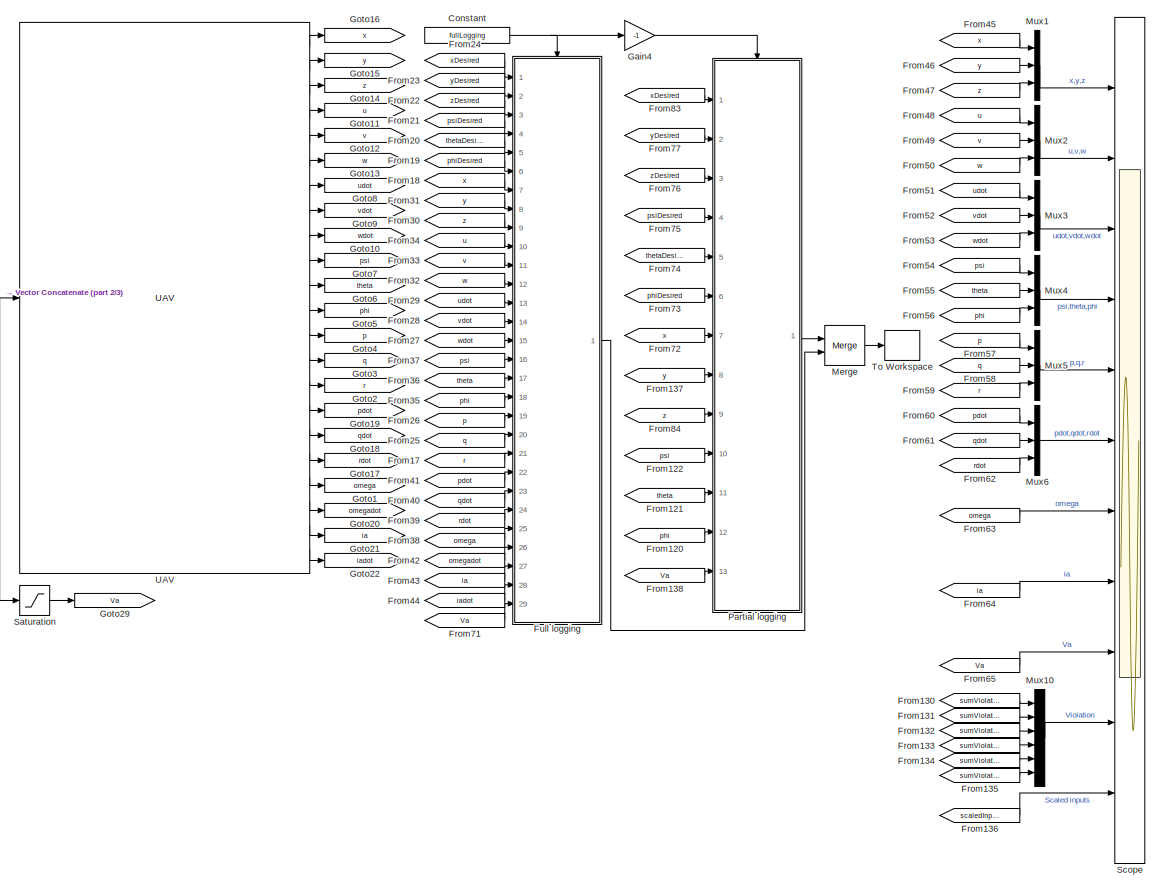
[diagram: root canvas - part 1/3, right side, full height]
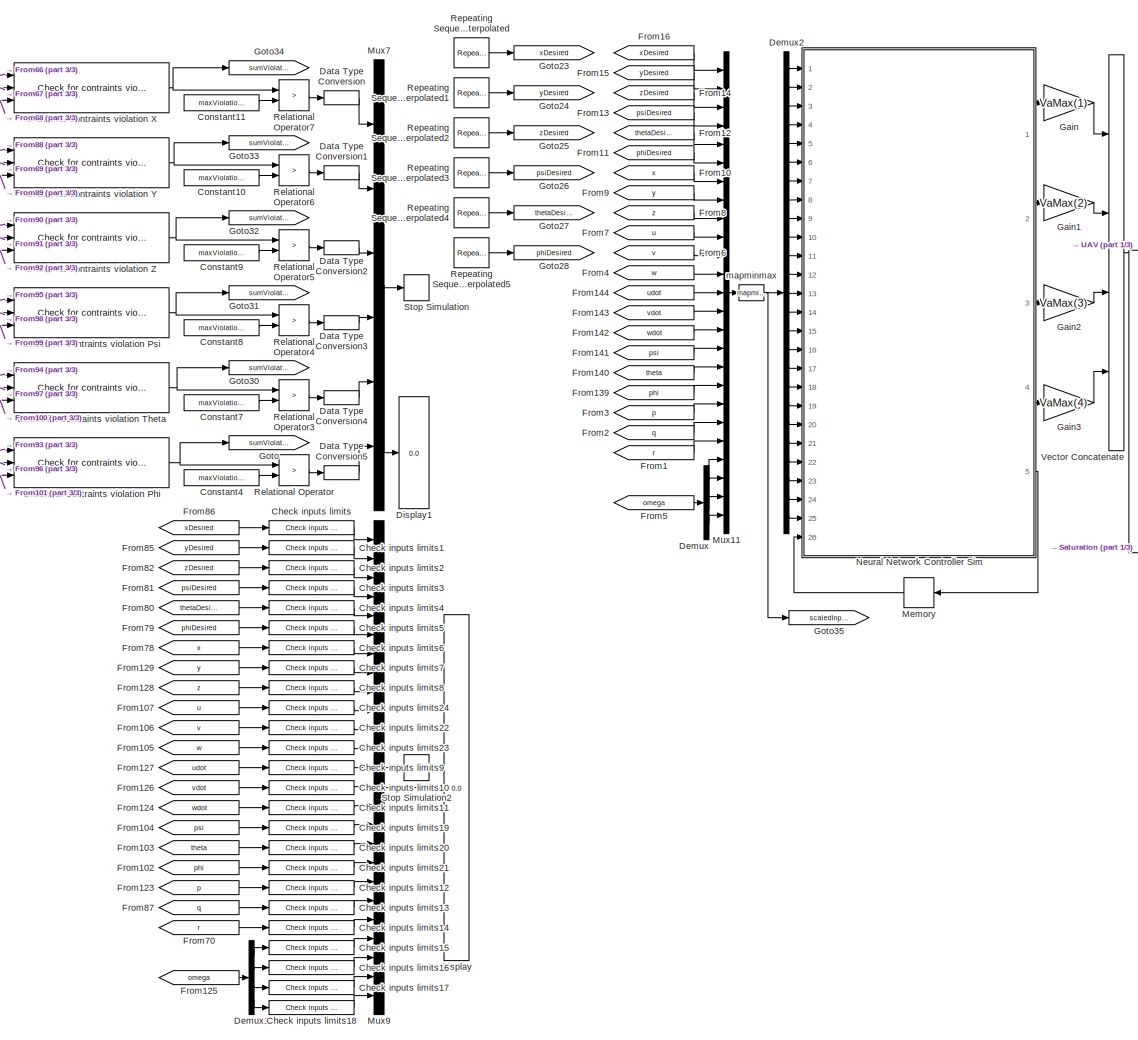
[diagram: root canvas - part 2/3, left side, full height]
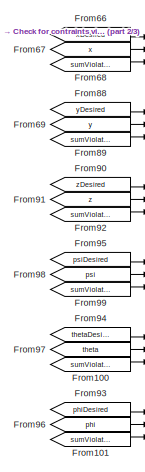
[diagram: root canvas - part 3/3, top left region]
MODEL slx_e8e5127eaf1f
KIND model
CONFIG AbsTol = auto
CONFIG FixedStep = auto
CONFIG MaxStep = auto
CONFIG MinStep = auto
CONFIG RelTol = 1e-3
CONFIG SampleTimeConstraint = Unconstrained
CONFIG Solver = VariableStepAuto
CONFIG SolverMode = Auto
CONFIG SolverName = VariableStepAuto
CONFIG StartTime = 0.0
CONFIG StopTime = 10.0
BLOCK [Reference] Check for contraints violation Phi  REF=uav_library/Check for contraints violation  (lib defined in slx_c8c01abc9ccf)
  Ports = [3, 1]
  SourceBlock = uav_library/Check for contraints violation
BLOCK [Reference] Check for contraints violation Psi  REF=uav_library/Check for contraints violation  (lib defined in slx_c8c01abc9ccf)
  Ports = [3, 1]
  SourceBlock = uav_library/Check for contraints violation
BLOCK [Reference] Check for contraints violation Theta  REF=uav_library/Check for contraints violation  (lib defined in slx_c8c01abc9ccf)
  Ports = [3, 1]
  SourceBlock = uav_library/Check for contraints violation
BLOCK [Reference] Check for contraints violation X  REF=uav_library/Check for contraints violation  (lib defined in slx_c8c01abc9ccf)
  Ports = [3, 1]
  SourceBlock = uav_library/Check for contraints violation
BLOCK [Reference] Check for contraints violation Y  REF=uav_library/Check for contraints violation  (lib defined in slx_c8c01abc9ccf)
  Ports = [3, 1]
  SourceBlock = uav_library/Check for contraints violation
BLOCK [Reference] Check for contraints violation Z  REF=uav_library/Check for contraints violation  (lib defined in slx_c8c01abc9ccf)
  Ports = [3, 1]
  SourceBlock = uav_library/Check for contraints violation
BLOCK [Reference] Check inputs limits  REF=uav_library/Check inputs limits  (lib defined in slx_c8c01abc9ccf)
  Ports = [1, 1]
  SourceBlock = uav_library/Check inputs limits
BLOCK [Reference] Check inputs limits1  REF=uav_library/Check inputs limits  (lib defined in slx_c8c01abc9ccf)
  Ports = [1, 1]
  SourceBlock = uav_library/Check inputs limits
BLOCK [Reference] Check inputs limits10  REF=uav_library/Check inputs limits  (lib defined in slx_c8c01abc9ccf)
  Ports = [1, 1]
  SourceBlock = uav_library/Check inputs limits
BLOCK [Reference] Check inputs limits11  REF=uav_library/Check inputs limits  (lib defined in slx_c8c01abc9ccf)
  Ports = [1, 1]
  SourceBlock = uav_library/Check inputs limits
BLOCK [Reference] Check inputs limits12  REF=uav_library/Check inputs limits  (lib defined in slx_c8c01abc9ccf)
  Ports = [1, 1]
  SourceBlock = uav_library/Check inputs limits
BLOCK [Reference] Check inputs limits13  REF=uav_library/Check inputs limits  (lib defined in slx_c8c01abc9ccf)
  Ports = [1, 1]
  SourceBlock = uav_library/Check inputs limits
BLOCK [Reference] Check inputs limits14  REF=uav_library/Check inputs limits  (lib defined in slx_c8c01abc9ccf)
  Ports = [1, 1]
  SourceBlock = uav_library/Check inputs limits
BLOCK [Reference] Check inputs limits15  REF=uav_library/Check inputs limits  (lib defined in slx_c8c01abc9ccf)
  Ports = [1, 1]
  SourceBlock = uav_library/Check inputs limits
BLOCK [Reference] Check inputs limits16  REF=uav_library/Check inputs limits  (lib defined in slx_c8c01abc9ccf)
  Ports = [1, 1]
  SourceBlock = uav_library/Check inputs limits
BLOCK [Reference] Check inputs limits17  REF=uav_library/Check inputs limits  (lib defined in slx_c8c01abc9ccf)
  Ports = [1, 1]
  SourceBlock = uav_library/Check inputs limits
BLOCK [Reference] Check inputs limits18  REF=uav_library/Check inputs limits  (lib defined in slx_c8c01abc9ccf)
  Ports = [1, 1]
  SourceBlock = uav_library/Check inputs limits
BLOCK [Reference] Check inputs limits19  REF=uav_library/Check inputs limits  (lib defined in slx_c8c01abc9ccf)
  Ports = [1, 1]
  SourceBlock = uav_library/Check inputs limits
BLOCK [Reference] Check inputs limits2  REF=uav_library/Check inputs limits  (lib defined in slx_c8c01abc9ccf)
  Ports = [1, 1]
  SourceBlock = uav_library/Check inputs limits
BLOCK [Reference] Check inputs limits20  REF=uav_library/Check inputs limits  (lib defined in slx_c8c01abc9ccf)
  Ports = [1, 1]
  SourceBlock = uav_library/Check inputs limits
BLOCK [Reference] Check inputs limits21  REF=uav_library/Check inputs limits  (lib defined in slx_c8c01abc9ccf)
  Ports = [1, 1]
  SourceBlock = uav_library/Check inputs limits
BLOCK [Reference] Check inputs limits22  REF=uav_library/Check inputs limits  (lib defined in slx_c8c01abc9ccf)
  Ports = [1, 1]
  SourceBlock = uav_library/Check inputs limits
BLOCK [Reference] Check inputs limits23  REF=uav_library/Check inputs limits  (lib defined in slx_c8c01abc9ccf)
  Ports = [1, 1]
  SourceBlock = uav_library/Check inputs limits
BLOCK [Reference] Check inputs limits24  REF=uav_library/Check inputs limits  (lib defined in slx_c8c01abc9ccf)
  Ports = [1, 1]
  SourceBlock = uav_library/Check inputs limits
BLOCK [Reference] Check inputs limits3  REF=uav_library/Check inputs limits  (lib defined in slx_c8c01abc9ccf)
  Ports = [1, 1]
  SourceBlock = uav_library/Check inputs limits
BLOCK [Reference] Check inputs limits4  REF=uav_library/Check inputs limits  (lib defined in slx_c8c01abc9ccf)
  Ports = [1, 1]
  SourceBlock = uav_library/Check inputs limits
BLOCK [Reference] Check inputs limits5  REF=uav_library/Check inputs limits  (lib defined in slx_c8c01abc9ccf)
  Ports = [1, 1]
  SourceBlock = uav_library/Check inputs limits
BLOCK [Reference] Check inputs limits6  REF=uav_library/Check inputs limits  (lib defined in slx_c8c01abc9ccf)
  Ports = [1, 1]
  SourceBlock = uav_library/Check inputs limits
BLOCK [Reference] Check inputs limits7  REF=uav_library/Check inputs limits  (lib defined in slx_c8c01abc9ccf)
  Ports = [1, 1]
  SourceBlock = uav_library/Check inputs limits
BLOCK [Reference] Check inputs limits8  REF=uav_library/Check inputs limits  (lib defined in slx_c8c01abc9ccf)
  Ports = [1, 1]
  SourceBlock = uav_library/Check inputs limits
BLOCK [Reference] Check inputs limits9  REF=uav_library/Check inputs limits  (lib defined in slx_c8c01abc9ccf)
  Ports = [1, 1]
  SourceBlock = uav_library/Check inputs limits
BLOCK [Constant] Constant
  Value = fullLogging
BLOCK [Constant] Constant10
  Value = maxViolationY
BLOCK [Constant] Constant11
  Value = maxViolationX
BLOCK [Constant] Constant4
  Value = maxViolationPhi
BLOCK [Constant] Constant7
  Value = maxViolationTheta
BLOCK [Constant] Constant8
  Value = maxViolationPsi
BLOCK [Constant] Constant9
  Value = maxViolationZ
BLOCK [DataTypeConversion] Data Type Conversion
  OutDataTypeStr = double
  RndMeth = Floor
  SaturateOnIntegerOverflow = off
BLOCK [DataTypeConversion] Data Type Conversion1
  OutDataTypeStr = double
  RndMeth = Floor
  SaturateOnIntegerOverflow = off
BLOCK [DataTypeConversion] Data Type Conversion2
  OutDataTypeStr = double
  RndMeth = Floor
  SaturateOnIntegerOverflow = off
BLOCK [DataTypeConversion] Data Type Conversion3
  OutDataTypeStr = double
  RndMeth = Floor
  SaturateOnIntegerOverflow = off
BLOCK [DataTypeConversion] Data Type Conversion4
  OutDataTypeStr = double
  RndMeth = Floor
  SaturateOnIntegerOverflow = off
BLOCK [DataTypeConversion] Data Type Conversion5
  OutDataTypeStr = double
  RndMeth = Floor
  SaturateOnIntegerOverflow = off
BLOCK [Demux] Demux
  DisplayOption = bar
  Ports = [1, 4]
BLOCK [Demux] Demux1
  DisplayOption = bar
  Ports = [1, 4]
BLOCK [Demux] Demux2
  DisplayOption = bar
  Outputs = 25
  Ports = [1, 25]
BLOCK [Display] Display
  Commented = on
  Decimation = 1
  Ports = [1]
BLOCK [Display] Display1
  Commented = on
  Decimation = 1
  Ports = [1]
BLOCK [From] From1
  GotoTag = r
BLOCK [From] From10
  GotoTag = x
BLOCK [From] From100
  GotoTag = sumViolationTheta
BLOCK [From] From101
  GotoTag = sumViolationPhi
BLOCK [From] From102
  GotoTag = phi
BLOCK [From] From103
  GotoTag = theta
BLOCK [From] From104
  GotoTag = psi
BLOCK [From] From105
  GotoTag = w
BLOCK [From] From106
  GotoTag = v
BLOCK [From] From107
  GotoTag = u
BLOCK [From] From11
  GotoTag = phiDesired
BLOCK [From] From12
  GotoTag = thetaDesired
BLOCK [From] From120
  GotoTag = phi
BLOCK [From] From121
  GotoTag = theta
BLOCK [From] From122
  GotoTag = psi
BLOCK [From] From123
  GotoTag = p
BLOCK [From] From124
  GotoTag = wdot
BLOCK [From] From125
  GotoTag = omega
BLOCK [From] From126
  GotoTag = vdot
BLOCK [From] From127
  GotoTag = udot
BLOCK [From] From128
  GotoTag = z
BLOCK [From] From129
  GotoTag = y
BLOCK [From] From13
  GotoTag = psiDesired
BLOCK [From] From130
  Commented = on
  GotoTag = sumViolationX
BLOCK [From] From131
  Commented = on
  GotoTag = sumViolationY
BLOCK [From] From132
  Commented = on
  GotoTag = sumViolationZ
BLOCK [From] From133
  Commented = on
  GotoTag = sumViolationPsi
BLOCK [From] From134
  Commented = on
  GotoTag = sumViolationTheta
BLOCK [From] From135
  Commented = on
  GotoTag = sumViolationPhi
BLOCK [From] From136
  Commented = on
  GotoTag = scaledInputs
BLOCK [From] From137
  GotoTag = y
BLOCK [From] From138
  GotoTag = Va
BLOCK [From] From139
  GotoTag = phi
BLOCK [From] From14
  GotoTag = zDesired
BLOCK [From] From140
  GotoTag = theta
BLOCK [From] From141
  GotoTag = psi
BLOCK [From] From142
  GotoTag = wdot
BLOCK [From] From143
  GotoTag = vdot
BLOCK [From] From144
  GotoTag = udot
BLOCK [From] From15
  GotoTag = yDesired
BLOCK [From] From16
  GotoTag = xDesired
BLOCK [From] From17
  GotoTag = r
BLOCK [From] From18
  GotoTag = x
BLOCK [From] From19
  GotoTag = phiDesired
BLOCK [From] From2
  GotoTag = q
BLOCK [From] From20
  GotoTag = thetaDesired
BLOCK [From] From21
  GotoTag = psiDesired
BLOCK [From] From22
  GotoTag = zDesired
BLOCK [From] From23
  GotoTag = yDesired
BLOCK [From] From24
  GotoTag = xDesired
BLOCK [From] From25
  GotoTag = q
BLOCK [From] From26
  GotoTag = p
BLOCK [From] From27
  GotoTag = wdot
BLOCK [From] From28
  GotoTag = vdot
BLOCK [From] From29
  GotoTag = udot
BLOCK [From] From3
  GotoTag = p
BLOCK [From] From30
  GotoTag = z
BLOCK [From] From31
  GotoTag = y
BLOCK [From] From32
  GotoTag = w
BLOCK [From] From33
  GotoTag = v
BLOCK [From] From34
  GotoTag = u
BLOCK [From] From35
  GotoTag = phi
BLOCK [From] From36
  GotoTag = theta
BLOCK [From] From37
  GotoTag = psi
BLOCK [From] From38
  GotoTag = omega
BLOCK [From] From39
  GotoTag = rdot
BLOCK [From] From4
  GotoTag = w
BLOCK [From] From40
  GotoTag = qdot
BLOCK [From] From41
  GotoTag = pdot
BLOCK [From] From42
  GotoTag = omegadot
BLOCK [From] From43
  GotoTag = ia
BLOCK [From] From44
  GotoTag = iadot
BLOCK [From] From45
  Commented = on
  GotoTag = x
BLOCK [From] From46
  Commented = on
  GotoTag = y
BLOCK [From] From47
  Commented = on
  GotoTag = z
BLOCK [From] From48
  Commented = on
  GotoTag = u
BLOCK [From] From49
  Commented = on
  GotoTag = v
BLOCK [From] From5
  GotoTag = omega
BLOCK [From] From50
  Commented = on
  GotoTag = w
BLOCK [From] From51
  Commented = on
  GotoTag = udot
BLOCK [From] From52
  Commented = on
  GotoTag = vdot
BLOCK [From] From53
  Commented = on
  GotoTag = wdot
BLOCK [From] From54
  Commented = on
  GotoTag = psi
BLOCK [From] From55
  Commented = on
  GotoTag = theta
BLOCK [From] From56
  Commented = on
  GotoTag = phi
BLOCK [From] From57
  Commented = on
  GotoTag = p
BLOCK [From] From58
  Commented = on
  GotoTag = q
BLOCK [From] From59
  Commented = on
  GotoTag = r
BLOCK [From] From6
  GotoTag = v
BLOCK [From] From60
  Commented = on
  GotoTag = pdot
BLOCK [From] From61
  Commented = on
  GotoTag = qdot
BLOCK [From] From62
  Commented = on
  GotoTag = rdot
BLOCK [From] From63
  Commented = on
  GotoTag = omega
BLOCK [From] From64
  Commented = on
  GotoTag = ia
BLOCK [From] From65
  Commented = on
  GotoTag = Va
BLOCK [From] From66
  GotoTag = xDesired
BLOCK [From] From67
  GotoTag = x
BLOCK [From] From68
  GotoTag = sumViolationX
BLOCK [From] From69
  GotoTag = y
BLOCK [From] From7
  GotoTag = u
BLOCK [From] From70
  GotoTag = r
BLOCK [From] From71
  GotoTag = Va
BLOCK [From] From72
  GotoTag = x
BLOCK [From] From73
  GotoTag = phiDesired
BLOCK [From] From74
  GotoTag = thetaDesired
BLOCK [From] From75
  GotoTag = psiDesired
BLOCK [From] From76
  GotoTag = zDesired
BLOCK [From] From77
  GotoTag = yDesired
BLOCK [From] From78
  GotoTag = x
BLOCK [From] From79
  GotoTag = phiDesired
BLOCK [From] From8
  GotoTag = z
BLOCK [From] From80
  GotoTag = thetaDesired
BLOCK [From] From81
  GotoTag = psiDesired
BLOCK [From] From82
  GotoTag = zDesired
BLOCK [From] From83
  GotoTag = xDesired
BLOCK [From] From84
  GotoTag = z
BLOCK [From] From85
  GotoTag = yDesired
BLOCK [From] From86
  GotoTag = xDesired
BLOCK [From] From87
  GotoTag = q
BLOCK [From] From88
  GotoTag = yDesired
BLOCK [From] From89
  GotoTag = sumViolationY
BLOCK [From] From9
  GotoTag = y
BLOCK [From] From90
  GotoTag = zDesired
BLOCK [From] From91
  GotoTag = z
BLOCK [From] From92
  GotoTag = sumViolationZ
BLOCK [From] From93
  GotoTag = phiDesired
BLOCK [From] From94
  GotoTag = thetaDesired
BLOCK [From] From95
  GotoTag = psiDesired
BLOCK [From] From96
  GotoTag = phi
BLOCK [From] From97
  GotoTag = theta
BLOCK [From] From98
  GotoTag = psi
BLOCK [From] From99
  GotoTag = sumViolationPsi
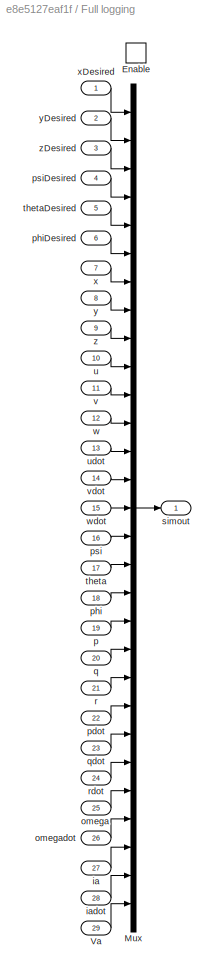
BLOCK [SubSystem] Full logging
  Ports = [29, 1, 1]
  RequestExecContextInheritance = off
  Variant = off
BLOCK [EnablePort] Full logging/Enable
  Ports = []
  StatesWhenEnabling = reset
BLOCK [Mux] Full logging/Mux
  DisplayOption = bar
  Inputs = 29
  Ports = [29, 1]
BLOCK [Inport] Full logging/Va
  IconDisplay = Port number
  Port = 29
BLOCK [Inport] Full logging/ia
  IconDisplay = Port number
  Port = 27
BLOCK [Inport] Full logging/iadot
  IconDisplay = Port number
  Port = 28
BLOCK [Inport] Full logging/omega
  IconDisplay = Port number
  Port = 25
BLOCK [Inport] Full logging/omegadot
  IconDisplay = Port number
  Port = 26
BLOCK [Inport] Full logging/p
  IconDisplay = Port number
  Port = 19
BLOCK [Inport] Full logging/pdot
  IconDisplay = Port number
  Port = 22
BLOCK [Inport] Full logging/phi
  IconDisplay = Port number
  Port = 18
BLOCK [Inport] Full logging/phiDesired
  IconDisplay = Port number
  Port = 6
BLOCK [Inport] Full logging/psi
  IconDisplay = Port number
  Port = 16
BLOCK [Inport] Full logging/psiDesired
  IconDisplay = Port number
  Port = 4
BLOCK [Inport] Full logging/q
  IconDisplay = Port number
  Port = 20
BLOCK [Inport] Full logging/qdot
  IconDisplay = Port number
  Port = 23
BLOCK [Inport] Full logging/r
  IconDisplay = Port number
  Port = 21
BLOCK [Inport] Full logging/rdot
  IconDisplay = Port number
  Port = 24
BLOCK [Outport] Full logging/simout
  IconDisplay = Port number
BLOCK [Inport] Full logging/theta
  IconDisplay = Port number
  Port = 17
BLOCK [Inport] Full logging/thetaDesired
  IconDisplay = Port number
  Port = 5
BLOCK [Inport] Full logging/u
  IconDisplay = Port number
  Port = 10
BLOCK [Inport] Full logging/udot
  IconDisplay = Port number
  Port = 13
BLOCK [Inport] Full logging/v
  IconDisplay = Port number
  Port = 11
BLOCK [Inport] Full logging/vdot
  IconDisplay = Port number
  Port = 14
BLOCK [Inport] Full logging/w
  IconDisplay = Port number
  Port = 12
BLOCK [Inport] Full logging/wdot
  IconDisplay = Port number
  Port = 15
BLOCK [Inport] Full logging/x
  IconDisplay = Port number
  Port = 7
BLOCK [Inport] Full logging/xDesired
  IconDisplay = Port number
BLOCK [Inport] Full logging/y
  IconDisplay = Port number
  Port = 8
BLOCK [Inport] Full logging/yDesired
  IconDisplay = Port number
  Port = 2
BLOCK [Inport] Full logging/z
  IconDisplay = Port number
  Port = 9
BLOCK [Inport] Full logging/zDesired
  IconDisplay = Port number
  Port = 3
BLOCK [Gain] Gain
  Gain = VaMax(1)
  OutDataTypeStr = Inherit: Inherit via internal rule
  ParamDataTypeStr = Inherit: Inherit via internal rule
  SaturateOnIntegerOverflow = off
BLOCK [Gain] Gain1
  Gain = VaMax(2)
  OutDataTypeStr = Inherit: Inherit via internal rule
  ParamDataTypeStr = Inherit: Inherit via internal rule
  SaturateOnIntegerOverflow = off
BLOCK [Gain] Gain2
  Gain = VaMax(3)
  OutDataTypeStr = Inherit: Inherit via internal rule
  ParamDataTypeStr = Inherit: Inherit via internal rule
  SaturateOnIntegerOverflow = off
BLOCK [Gain] Gain3
  Gain = VaMax(4)
  OutDataTypeStr = Inherit: Inherit via internal rule
  ParamDataTypeStr = Inherit: Inherit via internal rule
  SaturateOnIntegerOverflow = off
BLOCK [Gain] Gain4
  Gain = -1
  OutDataTypeStr = Inherit: Inherit via internal rule
  ParamDataTypeStr = Inherit: Inherit via internal rule
  SaturateOnIntegerOverflow = off
BLOCK [Goto] Goto
  GotoTag = sumViolationPhi
BLOCK [Goto] Goto1
  GotoTag = omega
BLOCK [Goto] Goto10
  GotoTag = wdot
BLOCK [Goto] Goto11
  GotoTag = u
BLOCK [Goto] Goto12
  GotoTag = v
BLOCK [Goto] Goto13
  GotoTag = w
BLOCK [Goto] Goto14
  GotoTag = z
BLOCK [Goto] Goto15
  GotoTag = y
BLOCK [Goto] Goto16
  GotoTag = x
BLOCK [Goto] Goto17
  GotoTag = rdot
BLOCK [Goto] Goto18
  GotoTag = qdot
BLOCK [Goto] Goto19
  GotoTag = pdot
BLOCK [Goto] Goto2
  GotoTag = r
BLOCK [Goto] Goto20
  GotoTag = omegadot
BLOCK [Goto] Goto21
  GotoTag = ia
BLOCK [Goto] Goto22
  GotoTag = iadot
BLOCK [Goto] Goto23
  GotoTag = xDesired
BLOCK [Goto] Goto24
  GotoTag = yDesired
BLOCK [Goto] Goto25
  GotoTag = zDesired
BLOCK [Goto] Goto26
  GotoTag = psiDesired
BLOCK [Goto] Goto27
  GotoTag = thetaDesired
BLOCK [Goto] Goto28
  GotoTag = phiDesired
BLOCK [Goto] Goto29
  GotoTag = Va
BLOCK [Goto] Goto3
  GotoTag = q
BLOCK [Goto] Goto30
  GotoTag = sumViolationTheta
BLOCK [Goto] Goto31
  GotoTag = sumViolationPsi
BLOCK [Goto] Goto32
  GotoTag = sumViolationZ
BLOCK [Goto] Goto33
  GotoTag = sumViolationY
BLOCK [Goto] Goto34
  GotoTag = sumViolationX
BLOCK [Goto] Goto35
  Commented = on
  GotoTag = scaledInputs
BLOCK [Goto] Goto4
  GotoTag = p
BLOCK [Goto] Goto5
  GotoTag = phi
BLOCK [Goto] Goto6
  GotoTag = theta
BLOCK [Goto] Goto7
  GotoTag = psi
BLOCK [Goto] Goto8
  GotoTag = udot
BLOCK [Goto] Goto9
  GotoTag = vdot
BLOCK [Memory] Memory
  X0 = initialState
BLOCK [Merge] Merge
  Ports = [2, 1]
BLOCK [Mux] Mux1
  Commented = on
  DisplayOption = bar
  Inputs = 3
  Ports = [3, 1]
BLOCK [Mux] Mux10
  Commented = on
  DisplayOption = bar
  Inputs = 6
  Ports = [6, 1]
BLOCK [Mux] Mux11
  DisplayOption = bar
  Inputs = 25
  Ports = [25, 1]
BLOCK [Mux] Mux2
  Commented = on
  DisplayOption = bar
  Inputs = 3
  Ports = [3, 1]
BLOCK [Mux] Mux3
  Commented = on
  DisplayOption = bar
  Inputs = 3
  Ports = [3, 1]
BLOCK [Mux] Mux4
  Commented = on
  DisplayOption = bar
  Inputs = 3
  Ports = [3, 1]
BLOCK [Mux] Mux5
  Commented = on
  DisplayOption = bar
  Inputs = 3
  Ports = [3, 1]
BLOCK [Mux] Mux6
  Commented = on
  DisplayOption = bar
  Inputs = 3
  Ports = [3, 1]
BLOCK [Mux] Mux7
  DisplayOption = bar
  Inputs = 6
  Ports = [6, 1]
BLOCK [Mux] Mux9
  DisplayOption = bar
  Inputs = 25
  Ports = [25, 1]
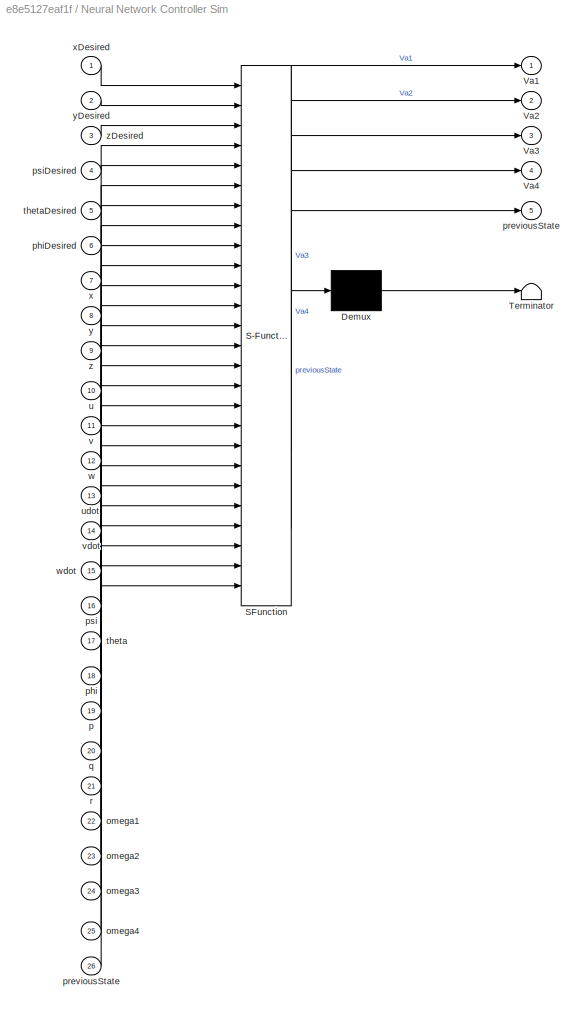
BLOCK [SubSystem] Neural Network Controller Sim
  ErrorFcn = Stateflow.Translate.translate
  PermitHierarchicalResolution = ExplicitOnly
  Ports = [26, 5]
  RTWSystemCode = Nonreusable function
  RequestExecContextInheritance = off
  SFBlockType = MATLAB Function
  TreatAsAtomicUnit = on
  Variant = off
BLOCK [Demux] Neural Network Controller Sim/ Demux 
  Outputs = 1
  Ports = [1, 1]
BLOCK [S-Function] Neural Network Controller Sim/ SFunction 
  EnableBusSupport = on
  FunctionName = sf_sfun
  PortCounts = [26 6]
  Ports = [26, 6]
  SFunctionDeploymentMode = off
  Tag = Stateflow S-Function uav_closed_loop_v5 2
BLOCK [Terminator] Neural Network Controller Sim/ Terminator 
BLOCK [Outport] Neural Network Controller Sim/Va1
  IconDisplay = Port number
BLOCK [Outport] Neural Network Controller Sim/Va2
  IconDisplay = Port number
  Port = 2
BLOCK [Outport] Neural Network Controller Sim/Va3
  IconDisplay = Port number
  Port = 3
BLOCK [Outport] Neural Network Controller Sim/Va4
  IconDisplay = Port number
  Port = 4
BLOCK [Inport] Neural Network Controller Sim/omega1
  IconDisplay = Port number
  Port = 22
BLOCK [Inport] Neural Network Controller Sim/omega2
  IconDisplay = Port number
  Port = 23
BLOCK [Inport] Neural Network Controller Sim/omega3
  IconDisplay = Port number
  Port = 24
BLOCK [Inport] Neural Network Controller Sim/omega4
  IconDisplay = Port number
  Port = 25
BLOCK [Inport] Neural Network Controller Sim/p
  IconDisplay = Port number
  Port = 19
BLOCK [Inport] Neural Network Controller Sim/phi
  IconDisplay = Port number
  Port = 18
BLOCK [Inport] Neural Network Controller Sim/phiDesired
  IconDisplay = Port number
  Port = 6
BLOCK [Outport] Neural Network Controller Sim/previousState
  IconDisplay = Port number
  Port = 5
BLOCK [Inport] Neural Network Controller Sim/previousState 
  IconDisplay = Port number
  Port = 26
BLOCK [Inport] Neural Network Controller Sim/psi
  IconDisplay = Port number
  Port = 16
BLOCK [Inport] Neural Network Controller Sim/psiDesired
  IconDisplay = Port number
  Port = 4
BLOCK [Inport] Neural Network Controller Sim/q
  IconDisplay = Port number
  Port = 20
BLOCK [Inport] Neural Network Controller Sim/r
  IconDisplay = Port number
  Port = 21
BLOCK [Inport] Neural Network Controller Sim/theta
  IconDisplay = Port number
  Port = 17
BLOCK [Inport] Neural Network Controller Sim/thetaDesired
  IconDisplay = Port number
  Port = 5
BLOCK [Inport] Neural Network Controller Sim/u
  IconDisplay = Port number
  Port = 10
BLOCK [Inport] Neural Network Controller Sim/udot
  IconDisplay = Port number
  Port = 13
BLOCK [Inport] Neural Network Controller Sim/v
  IconDisplay = Port number
  Port = 11
BLOCK [Inport] Neural Network Controller Sim/vdot
  IconDisplay = Port number
  Port = 14
BLOCK [Inport] Neural Network Controller Sim/w
  IconDisplay = Port number
  Port = 12
BLOCK [Inport] Neural Network Controller Sim/wdot
  IconDisplay = Port number
  Port = 15
BLOCK [Inport] Neural Network Controller Sim/x
  IconDisplay = Port number
  Port = 7
BLOCK [Inport] Neural Network Controller Sim/xDesired
  IconDisplay = Port number
BLOCK [Inport] Neural Network Controller Sim/y
  IconDisplay = Port number
  Port = 8
BLOCK [Inport] Neural Network Controller Sim/yDesired
  IconDisplay = Port number
  Port = 2
BLOCK [Inport] Neural Network Controller Sim/z
  IconDisplay = Port number
  Port = 9
BLOCK [Inport] Neural Network Controller Sim/zDesired
  IconDisplay = Port number
  Port = 3
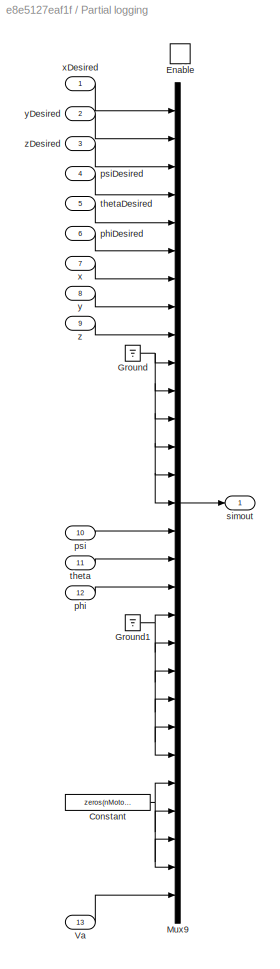
BLOCK [SubSystem] Partial logging
  Ports = [13, 1, 1]
  RequestExecContextInheritance = off
  Variant = off
BLOCK [Constant] Partial logging/Constant
  Value = zeros(nMotors,1)
BLOCK [EnablePort] Partial logging/Enable
  Ports = []
  StatesWhenEnabling = reset
BLOCK [Ground] Partial logging/Ground
BLOCK [Ground] Partial logging/Ground1
BLOCK [Mux] Partial logging/Mux9
  DisplayOption = bar
  Inputs = 29
  Ports = [29, 1]
BLOCK [Inport] Partial logging/Va
  IconDisplay = Port number
  Port = 13
BLOCK [Inport] Partial logging/phi
  IconDisplay = Port number
  Port = 12
BLOCK [Inport] Partial logging/phiDesired
  IconDisplay = Port number
  Port = 6
BLOCK [Inport] Partial logging/psi
  IconDisplay = Port number
  Port = 10
BLOCK [Inport] Partial logging/psiDesired
  IconDisplay = Port number
  Port = 4
BLOCK [Outport] Partial logging/simout
  IconDisplay = Port number
BLOCK [Inport] Partial logging/theta
  IconDisplay = Port number
  Port = 11
BLOCK [Inport] Partial logging/thetaDesired
  IconDisplay = Port number
  Port = 5
BLOCK [Inport] Partial logging/x
  IconDisplay = Port number
  Port = 7
BLOCK [Inport] Partial logging/xDesired
  IconDisplay = Port number
BLOCK [Inport] Partial logging/y
  IconDisplay = Port number
  Port = 8
BLOCK [Inport] Partial logging/yDesired
  IconDisplay = Port number
  Port = 2
BLOCK [Inport] Partial logging/z
  IconDisplay = Port number
  Port = 9
BLOCK [Inport] Partial logging/zDesired
  IconDisplay = Port number
  Port = 3
BLOCK [RelationalOperator] Relational Operator
  InputSameDT = off
  Operator = >
  OutDataTypeStr = boolean
  Ports = [2, 1]
  ZeroCross = off
BLOCK [RelationalOperator] Relational Operator3
  InputSameDT = off
  Operator = >
  OutDataTypeStr = boolean
  Ports = [2, 1]
  ZeroCross = off
BLOCK [RelationalOperator] Relational Operator4
  InputSameDT = off
  Operator = >
  OutDataTypeStr = boolean
  Ports = [2, 1]
  ZeroCross = off
BLOCK [RelationalOperator] Relational Operator5
  InputSameDT = off
  Operator = >
  OutDataTypeStr = boolean
  Ports = [2, 1]
  ZeroCross = off
BLOCK [RelationalOperator] Relational Operator6
  InputSameDT = off
  Operator = >
  OutDataTypeStr = boolean
  Ports = [2, 1]
  ZeroCross = off
BLOCK [RelationalOperator] Relational Operator7
  InputSameDT = off
  Operator = >
  OutDataTypeStr = boolean
  Ports = [2, 1]
  ZeroCross = off
BLOCK [Reference] Repeating Sequence Interpolated  REF=simulink/Sources/Repeating
Sequence
Interpolated
  Ports = [0, 1]
  SourceBlock = simulink/Sources/Repeating\nSequence\nInterpolated
  SourceType = Repeating Sequence Interpolated
BLOCK [Reference] Repeating Sequence Interpolated1  REF=simulink/Sources/Repeating
Sequence
Interpolated
  Ports = [0, 1]
  SourceBlock = simulink/Sources/Repeating\nSequence\nInterpolated
  SourceType = Repeating Sequence Interpolated
BLOCK [Reference] Repeating Sequence Interpolated2  REF=simulink/Sources/Repeating
Sequence
Interpolated
  Ports = [0, 1]
  SourceBlock = simulink/Sources/Repeating\nSequence\nInterpolated
  SourceType = Repeating Sequence Interpolated
BLOCK [Reference] Repeating Sequence Interpolated3  REF=simulink/Sources/Repeating
Sequence
Interpolated
  Ports = [0, 1]
  SourceBlock = simulink/Sources/Repeating\nSequence\nInterpolated
  SourceType = Repeating Sequence Interpolated
BLOCK [Reference] Repeating Sequence Interpolated4  REF=simulink/Sources/Repeating
Sequence
Interpolated
  Ports = [0, 1]
  SourceBlock = simulink/Sources/Repeating\nSequence\nInterpolated
  SourceType = Repeating Sequence Interpolated
BLOCK [Reference] Repeating Sequence Interpolated5  REF=simulink/Sources/Repeating
Sequence
Interpolated
  Ports = [0, 1]
  SourceBlock = simulink/Sources/Repeating\nSequence\nInterpolated
  SourceType = Repeating Sequence Interpolated
BLOCK [Saturate] Saturation
  InputPortMap = u0
  LowerLimit = VaMin
  Ports = [1, 1]
  UpperLimit = VaMax
BLOCK [Scope] Scope
  Commented = on
  NumInputPorts = 11
  Ports = [11]
  ScopeSpecificationString = C++SS(StrPVP('SaveName','ScopeData'),StrPVP('LimitDataPoints','on'),StrPVP('DataFormat','Array'),StrPVP('Decimation','1'),StrPVP('BlockParamSampleInput','off'),StrPVP('SaveName','ScopeData'),StrPVP('SaveName','ScopeData'))
BLOCK [Stop] Stop Simulation
BLOCK [Stop] Stop Simulation2
BLOCK [ToWorkspace] To Workspace
  FixptAsFi = on
  MaxDataPoints = inf
  Ports = [1]
  SampleTime = loggingSampleTime
  Save2DSignal = 3-D array (concatenate along third dimension)
  SaveFormat = Structure With Time
  VariableName = simout1
BLOCK [Reference] UAV  REF=uav_library/UAV  (lib defined in slx_c8c01abc9ccf)
  Ports = [1, 22]
  SourceBlock = uav_library/UAV
BLOCK [Concatenate] Vector Concatenate
  NumInputs = 4
  Ports = [4, 1]
BLOCK [Reference] mapminmax  REF=neural/Processing Functions/mapminmax
  Ports = [1, 1]
  SourceBlock = neural/Processing Functions/mapminmax
  SourceType = MAPMINMAX Preprocess
NET Check for contraints violation Phi:1 -> Goto:1, Relational Operator:1
NET Check for contraints violation Psi:1 -> Goto31:1, Relational Operator4:1
NET Check for contraints violation Theta:1 -> Goto30:1, Relational Operator3:1
NET Check for contraints violation X:1 -> Goto34:1, Relational Operator7:1
NET Check for contraints violation Y:1 -> Goto33:1, Relational Operator6:1
NET Check for contraints violation Z:1 -> Goto32:1, Relational Operator5:1
LINE Check inputs limits10:1 -> Mux9:14
LINE Check inputs limits11:1 -> Mux9:15
LINE Check inputs limits12:1 -> Mux9:19
LINE Check inputs limits13:1 -> Mux9:20
LINE Check inputs limits14:1 -> Mux9:21
LINE Check inputs limits15:1 -> Mux9:22
LINE Check inputs limits16:1 -> Mux9:23
LINE Check inputs limits17:1 -> Mux9:24
LINE Check inputs limits18:1 -> Mux9:25
LINE Check inputs limits19:1 -> Mux9:16
LINE Check inputs limits1:1 -> Mux9:2
LINE Check inputs limits20:1 -> Mux9:17
LINE Check inputs limits21:1 -> Mux9:18
LINE Check inputs limits22:1 -> Mux9:11
LINE Check inputs limits23:1 -> Mux9:12
LINE Check inputs limits24:1 -> Mux9:10
LINE Check inputs limits2:1 -> Mux9:3
LINE Check inputs limits3:1 -> Mux9:4
LINE Check inputs limits4:1 -> Mux9:5
LINE Check inputs limits5:1 -> Mux9:6
LINE Check inputs limits6:1 -> Mux9:7
LINE Check inputs limits7:1 -> Mux9:8
LINE Check inputs limits8:1 -> Mux9:9
LINE Check inputs limits9:1 -> Mux9:13
LINE Check inputs limits:1 -> Mux9:1
LINE Constant10:1 -> Relational Operator6:2
LINE Constant11:1 -> Relational Operator7:2
LINE Constant4:1 -> Relational Operator:2
LINE Constant7:1 -> Relational Operator3:2
LINE Constant8:1 -> Relational Operator4:2
LINE Constant9:1 -> Relational Operator5:2
NET Constant:1 -> Full logging:enable, Gain4:1
LINE Data Type Conversion1:1 -> Mux7:2
LINE Data Type Conversion2:1 -> Mux7:3
LINE Data Type Conversion3:1 -> Mux7:4
LINE Data Type Conversion4:1 -> Mux7:5
LINE Data Type Conversion5:1 -> Mux7:6
LINE Data Type Conversion:1 -> Mux7:1
LINE Demux1:1 -> Check inputs limits15:1
LINE Demux1:2 -> Check inputs limits16:1
LINE Demux1:3 -> Check inputs limits17:1
LINE Demux1:4 -> Check inputs limits18:1
LINE Demux2:1 -> Neural Network Controller Sim:1
LINE Demux2:10 -> Neural Network Controller Sim:10
LINE Demux2:11 -> Neural Network Controller Sim:11
LINE Demux2:12 -> Neural Network Controller Sim:12
LINE Demux2:13 -> Neural Network Controller Sim:13
LINE Demux2:14 -> Neural Network Controller Sim:14
LINE Demux2:15 -> Neural Network Controller Sim:15
LINE Demux2:16 -> Neural Network Controller Sim:16
LINE Demux2:17 -> Neural Network Controller Sim:17
LINE Demux2:18 -> Neural Network Controller Sim:18
LINE Demux2:19 -> Neural Network Controller Sim:19
LINE Demux2:2 -> Neural Network Controller Sim:2
LINE Demux2:20 -> Neural Network Controller Sim:20
LINE Demux2:21 -> Neural Network Controller Sim:21
LINE Demux2:22 -> Neural Network Controller Sim:22
LINE Demux2:23 -> Neural Network Controller Sim:23
LINE Demux2:24 -> Neural Network Controller Sim:24
LINE Demux2:25 -> Neural Network Controller Sim:25
LINE Demux2:3 -> Neural Network Controller Sim:3
LINE Demux2:4 -> Neural Network Controller Sim:4
LINE Demux2:5 -> Neural Network Controller Sim:5
LINE Demux2:6 -> Neural Network Controller Sim:6
LINE Demux2:7 -> Neural Network Controller Sim:7
LINE Demux2:8 -> Neural Network Controller Sim:8
LINE Demux2:9 -> Neural Network Controller Sim:9
LINE Demux:1 -> Mux11:22
LINE Demux:2 -> Mux11:23
LINE Demux:3 -> Mux11:24
LINE Demux:4 -> Mux11:25
LINE From100:1 -> Check for contraints violation Theta:3
LINE From101:1 -> Check for contraints violation Phi:3
LINE From102:1 -> Check inputs limits21:1
LINE From103:1 -> Check inputs limits20:1
LINE From104:1 -> Check inputs limits19:1
LINE From105:1 -> Check inputs limits23:1
LINE From106:1 -> Check inputs limits22:1
LINE From107:1 -> Check inputs limits24:1
LINE From10:1 -> Mux11:7
LINE From11:1 -> Mux11:6
LINE From120:1 -> Partial logging:12
LINE From121:1 -> Partial logging:11
LINE From122:1 -> Partial logging:10
LINE From123:1 -> Check inputs limits12:1
LINE From124:1 -> Check inputs limits11:1
LINE From125:1 -> Demux1:1
LINE From126:1 -> Check inputs limits10:1
LINE From127:1 -> Check inputs limits9:1
LINE From128:1 -> Check inputs limits8:1
LINE From129:1 -> Check inputs limits7:1
LINE From12:1 -> Mux11:5
LINE From130:1 -> Mux10:1
LINE From131:1 -> Mux10:2
LINE From132:1 -> Mux10:3
LINE From133:1 -> Mux10:4
LINE From134:1 -> Mux10:5
LINE From135:1 -> Mux10:6
LINE From136:1 -> Scope:11
LINE From137:1 -> Partial logging:8
LINE From138:1 -> Partial logging:13
LINE From139:1 -> Mux11:18
LINE From13:1 -> Mux11:4
LINE From140:1 -> Mux11:17
LINE From141:1 -> Mux11:16
LINE From142:1 -> Mux11:15
LINE From143:1 -> Mux11:14
LINE From144:1 -> Mux11:13
LINE From14:1 -> Mux11:3
LINE From15:1 -> Mux11:2
LINE From16:1 -> Mux11:1
LINE From17:1 -> Full logging:21
LINE From18:1 -> Full logging:7
LINE From19:1 -> Full logging:6
LINE From1:1 -> Mux11:21
LINE From20:1 -> Full logging:5
LINE From21:1 -> Full logging:4
LINE From22:1 -> Full logging:3
LINE From23:1 -> Full logging:2
LINE From24:1 -> Full logging:1
LINE From25:1 -> Full logging:20
LINE From26:1 -> Full logging:19
LINE From27:1 -> Full logging:15
LINE From28:1 -> Full logging:14
LINE From29:1 -> Full logging:13
LINE From2:1 -> Mux11:20
LINE From30:1 -> Full logging:9
LINE From31:1 -> Full logging:8
LINE From32:1 -> Full logging:12
LINE From33:1 -> Full logging:11
LINE From34:1 -> Full logging:10
LINE From35:1 -> Full logging:18
LINE From36:1 -> Full logging:17
LINE From37:1 -> Full logging:16
LINE From38:1 -> Full logging:25
LINE From39:1 -> Full logging:24
LINE From3:1 -> Mux11:19
LINE From40:1 -> Full logging:23
LINE From41:1 -> Full logging:22
LINE From42:1 -> Full logging:26
LINE From43:1 -> Full logging:27
LINE From44:1 -> Full logging:28
LINE From45:1 -> Mux1:1
LINE From46:1 -> Mux1:2
LINE From47:1 -> Mux1:3
LINE From48:1 -> Mux2:1
LINE From49:1 -> Mux2:2
LINE From4:1 -> Mux11:12
LINE From50:1 -> Mux2:3
LINE From51:1 -> Mux3:1
LINE From52:1 -> Mux3:2
LINE From53:1 -> Mux3:3
LINE From54:1 -> Mux4:1
LINE From55:1 -> Mux4:2
LINE From56:1 -> Mux4:3
LINE From57:1 -> Mux5:1
LINE From58:1 -> Mux5:2
LINE From59:1 -> Mux5:3
LINE From5:1 -> Demux:1
LINE From60:1 -> Mux6:1
LINE From61:1 -> Mux6:2
LINE From62:1 -> Mux6:3
LINE From63:1 -> Scope:7
LINE From64:1 -> Scope:8
LINE From65:1 -> Scope:9
LINE From66:1 -> Check for contraints violation X:1
LINE From67:1 -> Check for contraints violation X:2
LINE From68:1 -> Check for contraints violation X:3
LINE From69:1 -> Check for contraints violation Y:2
LINE From6:1 -> Mux11:11
LINE From70:1 -> Check inputs limits14:1
LINE From71:1 -> Full logging:29
LINE From72:1 -> Partial logging:7
LINE From73:1 -> Partial logging:6
LINE From74:1 -> Partial logging:5
LINE From75:1 -> Partial logging:4
LINE From76:1 -> Partial logging:3
LINE From77:1 -> Partial logging:2
LINE From78:1 -> Check inputs limits6:1
LINE From79:1 -> Check inputs limits5:1
LINE From7:1 -> Mux11:10
LINE From80:1 -> Check inputs limits4:1
LINE From81:1 -> Check inputs limits3:1
LINE From82:1 -> Check inputs limits2:1
LINE From83:1 -> Partial logging:1
LINE From84:1 -> Partial logging:9
LINE From85:1 -> Check inputs limits1:1
LINE From86:1 -> Check inputs limits:1
LINE From87:1 -> Check inputs limits13:1
LINE From88:1 -> Check for contraints violation Y:1
LINE From89:1 -> Check for contraints violation Y:3
LINE From8:1 -> Mux11:9
LINE From90:1 -> Check for contraints violation Z:1
LINE From91:1 -> Check for contraints violation Z:2
LINE From92:1 -> Check for contraints violation Z:3
LINE From93:1 -> Check for contraints violation Phi:1
LINE From94:1 -> Check for contraints violation Theta:1
LINE From95:1 -> Check for contraints violation Psi:1
LINE From96:1 -> Check for contraints violation Phi:2
LINE From97:1 -> Check for contraints violation Theta:2
LINE From98:1 -> Check for contraints violation Psi:2
LINE From99:1 -> Check for contraints violation Psi:3
LINE From9:1 -> Mux11:8
LINE Full logging/Mux:1 -> Full logging/simout:1
LINE Full logging/Va:1 -> Full logging/Mux:29
LINE Full logging/ia:1 -> Full logging/Mux:27
LINE Full logging/iadot:1 -> Full logging/Mux:28
LINE Full logging/omega:1 -> Full logging/Mux:25
LINE Full logging/omegadot:1 -> Full logging/Mux:26
LINE Full logging/p:1 -> Full logging/Mux:19
LINE Full logging/pdot:1 -> Full logging/Mux:22
LINE Full logging/phi:1 -> Full logging/Mux:18
LINE Full logging/phiDesired:1 -> Full logging/Mux:6
LINE Full logging/psi:1 -> Full logging/Mux:16
LINE Full logging/psiDesired:1 -> Full logging/Mux:4
LINE Full logging/q:1 -> Full logging/Mux:20
LINE Full logging/qdot:1 -> Full logging/Mux:23
LINE Full logging/r:1 -> Full logging/Mux:21
LINE Full logging/rdot:1 -> Full logging/Mux:24
LINE Full logging/theta:1 -> Full logging/Mux:17
LINE Full logging/thetaDesired:1 -> Full logging/Mux:5
LINE Full logging/u:1 -> Full logging/Mux:10
LINE Full logging/udot:1 -> Full logging/Mux:13
LINE Full logging/v:1 -> Full logging/Mux:11
LINE Full logging/vdot:1 -> Full logging/Mux:14
LINE Full logging/w:1 -> Full logging/Mux:12
LINE Full logging/wdot:1 -> Full logging/Mux:15
LINE Full logging/x:1 -> Full logging/Mux:7
LINE Full logging/xDesired:1 -> Full logging/Mux:1
LINE Full logging/y:1 -> Full logging/Mux:8
LINE Full logging/yDesired:1 -> Full logging/Mux:2
LINE Full logging/z:1 -> Full logging/Mux:9
LINE Full logging/zDesired:1 -> Full logging/Mux:3
LINE Full logging:1 -> Merge:2
LINE Gain1:1 -> Vector Concatenate:2
LINE Gain2:1 -> Vector Concatenate:3
LINE Gain3:1 -> Vector Concatenate:4
LINE Gain4:1 -> Partial logging:enable
LINE Gain:1 -> Vector Concatenate:1
LINE Memory:1 -> Neural Network Controller Sim:26
LINE Merge:1 -> To Workspace:1
LINE Mux10:1 -> Scope:10
LINE Mux11:1 -> mapminmax:1
LINE Mux1:1 -> Scope:1
LINE Mux2:1 -> Scope:2
LINE Mux3:1 -> Scope:3
LINE Mux4:1 -> Scope:4
LINE Mux5:1 -> Scope:5
LINE Mux6:1 -> Scope:6
NET Mux7:1 -> Display1:1, Stop Simulation:1
NET Mux9:1 -> Display:1, Stop Simulation2:1
LINE Neural Network Controller Sim:1 -> Gain:1
LINE Neural Network Controller Sim:2 -> Gain1:1
LINE Neural Network Controller Sim:3 -> Gain2:1
LINE Neural Network Controller Sim:4 -> Gain3:1
LINE Neural Network Controller Sim:5 -> Memory:1
NET Partial logging/Constant:1 -> Partial logging/Mux9:25, Partial logging/Mux9:26, Partial logging/Mux9:27, Partial logging/Mux9:28
NET Partial logging/Ground1:1 -> Partial logging/Mux9:19, Partial logging/Mux9:20, Partial logging/Mux9:21, Partial logging/Mux9:22, Partial logging/Mux9:23, Partial logging/Mux9:24
NET Partial logging/Ground:1 -> Partial logging/Mux9:10, Partial logging/Mux9:11, Partial logging/Mux9:12, Partial logging/Mux9:13, Partial logging/Mux9:14, Partial logging/Mux9:15
LINE Partial logging/Mux9:1 -> Partial logging/simout:1
LINE Partial logging/Va:1 -> Partial logging/Mux9:29
LINE Partial logging/phi:1 -> Partial logging/Mux9:18
LINE Partial logging/phiDesired:1 -> Partial logging/Mux9:6
LINE Partial logging/psi:1 -> Partial logging/Mux9:16
LINE Partial logging/psiDesired:1 -> Partial logging/Mux9:4
LINE Partial logging/theta:1 -> Partial logging/Mux9:17
LINE Partial logging/thetaDesired:1 -> Partial logging/Mux9:5
LINE Partial logging/x:1 -> Partial logging/Mux9:7
LINE Partial logging/xDesired:1 -> Partial logging/Mux9:1
LINE Partial logging/y:1 -> Partial logging/Mux9:8
LINE Partial logging/yDesired:1 -> Partial logging/Mux9:2
LINE Partial logging/z:1 -> Partial logging/Mux9:9
LINE Partial logging/zDesired:1 -> Partial logging/Mux9:3
LINE Partial logging:1 -> Merge:1
LINE Relational Operator3:1 -> Data Type Conversion4:1
LINE Relational Operator4:1 -> Data Type Conversion3:1
LINE Relational Operator5:1 -> Data Type Conversion2:1
LINE Relational Operator6:1 -> Data Type Conversion1:1
LINE Relational Operator7:1 -> Data Type Conversion:1
LINE Relational Operator:1 -> Data Type Conversion5:1
LINE Repeating Sequence Interpolated1:1 -> Goto24:1
LINE Repeating Sequence Interpolated2:1 -> Goto25:1
LINE Repeating Sequence Interpolated3:1 -> Goto26:1
LINE Repeating Sequence Interpolated4:1 -> Goto27:1
LINE Repeating Sequence Interpolated5:1 -> Goto28:1
LINE Repeating Sequence Interpolated:1 -> Goto23:1
LINE Saturation:1 -> Goto29:1
LINE UAV:1 -> Goto16:1
LINE UAV:10 -> Goto7:1
LINE UAV:11 -> Goto6:1
LINE UAV:12 -> Goto5:1
LINE UAV:13 -> Goto4:1
LINE UAV:14 -> Goto3:1
LINE UAV:15 -> Goto2:1
LINE UAV:16 -> Goto19:1
LINE UAV:17 -> Goto18:1
LINE UAV:18 -> Goto17:1
LINE UAV:19 -> Goto1:1
LINE UAV:2 -> Goto15:1
LINE UAV:20 -> Goto20:1
LINE UAV:21 -> Goto21:1
LINE UAV:22 -> Goto22:1
LINE UAV:3 -> Goto14:1
LINE UAV:4 -> Goto11:1
LINE UAV:5 -> Goto12:1
LINE UAV:6 -> Goto13:1
LINE UAV:7 -> Goto8:1
LINE UAV:8 -> Goto9:1
LINE UAV:9 -> Goto10:1
NET Vector Concatenate:1 -> Saturation:1, UAV:1
NET mapminmax:1 -> Demux2:1, Goto35:1
note: NET lines group one-source signal fan-out (src -> all destinations, sorted); 1:1 wires keep LINE
CHART Neural Network Controller Sim states=1 transitions=1
  STATE_LABEL 'eML_blk_kernel()'
  STATE_LABEL 'SCRIPT:\nfunction [Va1, Va2, Va3, Va4, previousState] = ...\n    neural_network_controller_sim(...\n    xDesired, yDesired, zDesired, ...\n    psiDesired, thetaDesired, phiDesired, ...\n    x, y, z, ...\n    u, v, w, ...\n    udot, vdot, wdot, ...\n    psi, theta, phi, ...\n    p, q, r, ...\n    omega1, omega2, omega3, omega4, ...\n    previousState)\n%#codegen\n\n% Evaluate neural network\n[Va1, Va2, Va3, Va4, ...<+277ch>'
